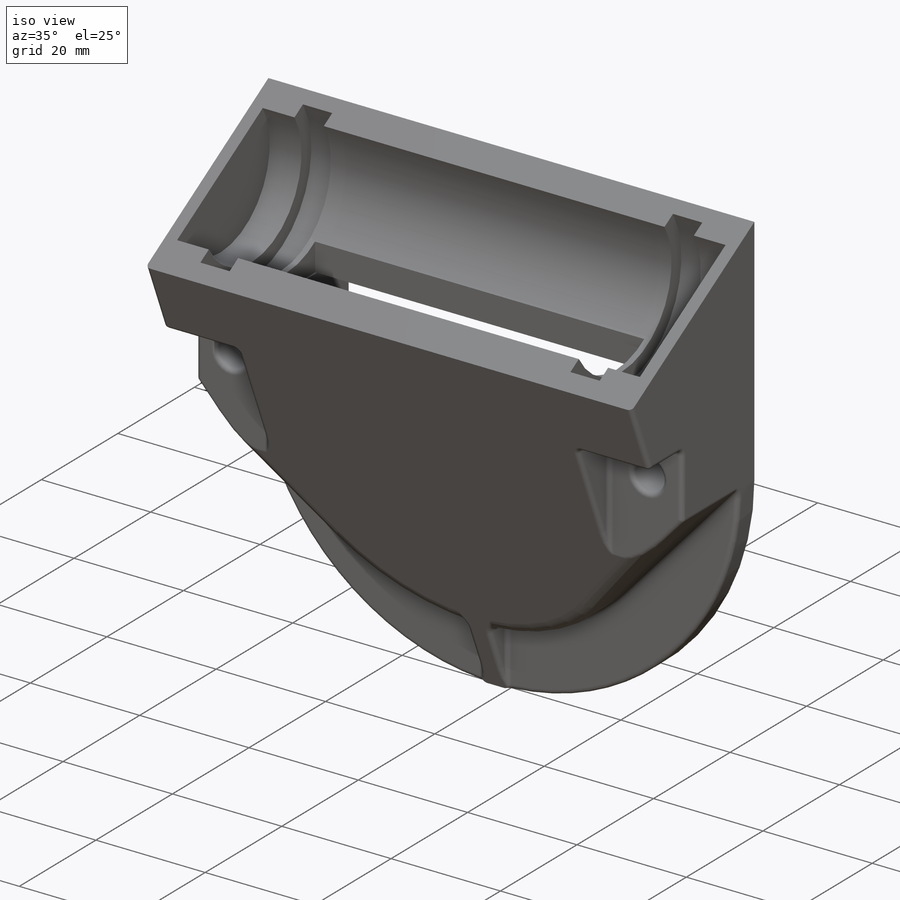
[diagram: iso view]
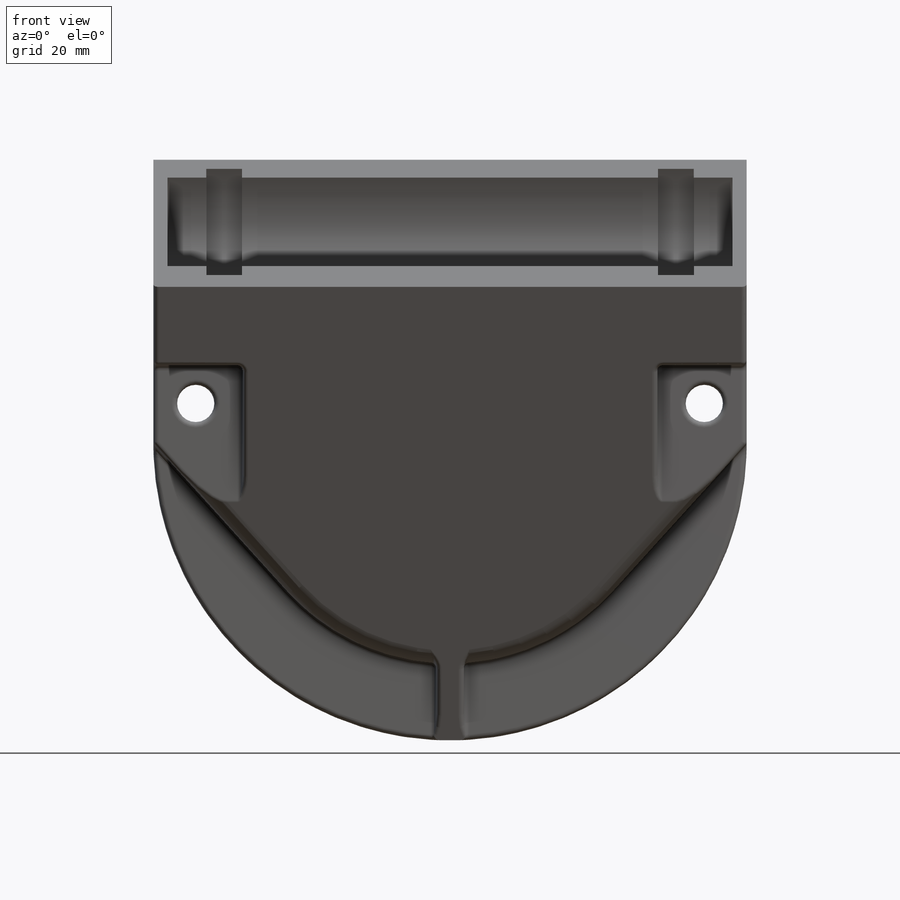
[diagram: front view]
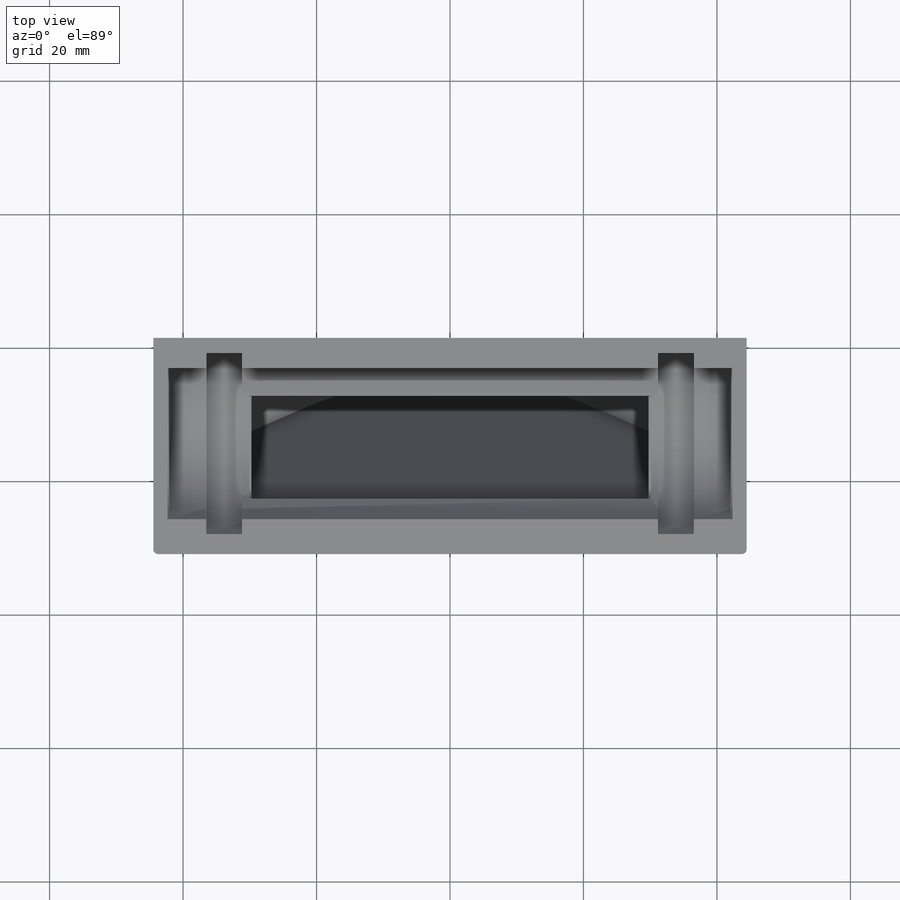
[diagram: top view]
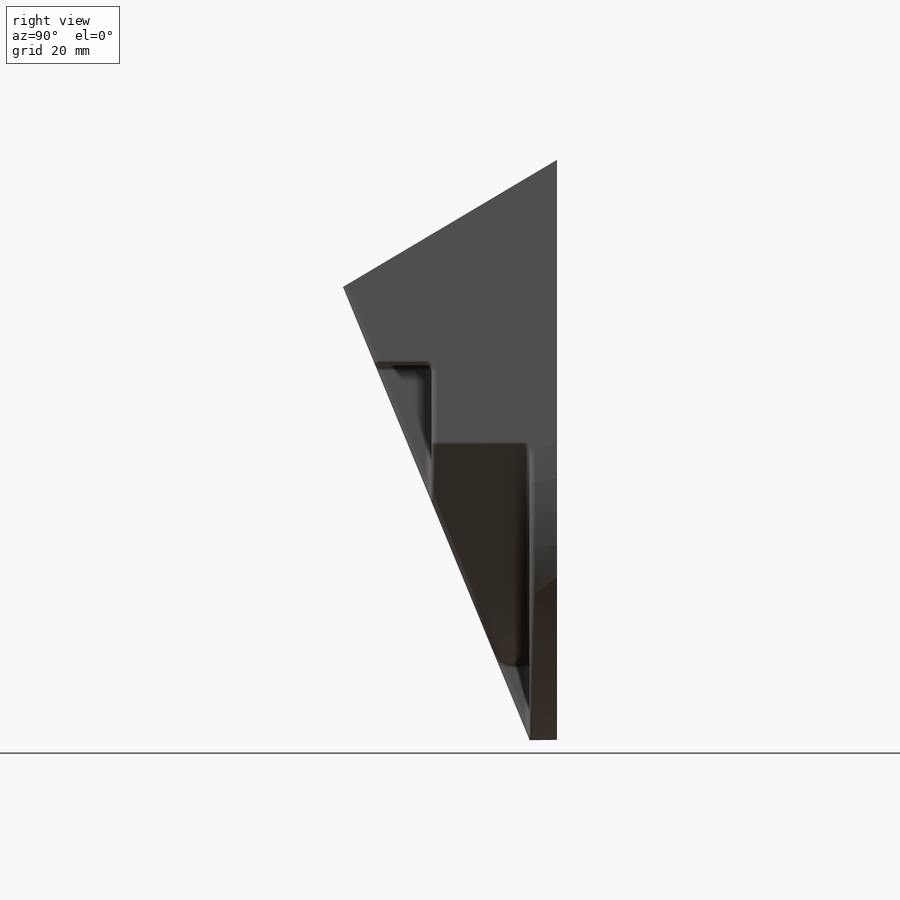
[diagram: right view]
SOLIDWORKS PART (.sldprt)
format: sldprt  version: not decoded by parser v0  size: 679,424 bytes
history: native  units: mm
features: sketch x13, cut_extrude x7, fillet x6, extrude x3, plane x2, material x1, cut_revolve x1 (+16 scaffold rows collapsed)
feature tree (49):
  scaffold x16  (default folders/planes/origin — collapsed)
  material  "Material <not specified>"
  sketch  "Sketch1"  dims[D1=44.45mm D2=42.545mm]
  extrude  "Extrude1"  Depth=4.1148mm
  sketch  "Sketch2"  dims[D1=11.5062mm]
  extrude  "Extrude2"  Depth=32.0802mm
  sketch  "Sketch3"  dims[D1=2.0828mm D2=2.0828mm]
  extrude  "Extrude3"  [1 undecoded]
  sketch  "Sketch9"  dims[D1=19.05mm]
  cut_extrude  "Extrude10"  [1 undecoded]
  sketch  "Sketch4"
  cut_extrude  "Extrude7"  [1 undecoded]
  sketch  "Sketch5"
  cut_extrude  "Extrude8"  [1 undecoded]
  sketch  "Sketch10"  dims[D1=12.7mm]
  plane  "Plane2"  Offset=18.8468mm
  sketch  "Sketch11"  dims[D1=~31.05785mm D2=~31.05785mm]
  cut_extrude  "Extrude12"  [1 undecoded]
  sketch  "Sketch12"  dims[c1.D1=13.0175mm c1.D2=13.0175mm c1.D6=13.0175mm c1.D8=15.5829mm c2.D2=31.1658mm c2.D3=31.1658mm c2.D4=36.5252mm c2.D5=36.5252mm c2.D6=42.3291mm c2.D7=42.3291mm]
  cut_revolve  "Cut-Revolve2"  Angle=360deg
  sketch  "Sketch13"  dims[c1.D3=30.1117mm c1.D4=88.9mm c2.D4=90.0deg c3.D4=30.1117mm c3.D1=8.9916mm c3.D2=8.9916mm c3.D3=30.1117mm c4.D4=30.1117mm]
  plane  "Plane3"
  sketch  "Sketch14"
  cut_extrude  "Extrude14"  Depth=25.1206mm
  sketch  "Sketch15"  dims[D1=5.08mm D2=14.6812mm]
  cut_extrude  "Extrude15"  Depth=5.334mm
  sketch  "Sketch17"  dims[D4=5.5753mm D5=5.5753mm D1=38.1mm D2=38.1mm D3=5.715mm]
  cut_extrude  "Extrude16"  [1 undecoded]
  fillet  "Fillet6"  Radius=3.175mm
  fillet  "Fillet7"  Radius=0.79375mm
  fillet  "Fillet8"  Radius=0.79375mm
  fillet  "Fillet9"  Radius=0.79375mm
  fillet  "Fillet10"  Radius=0.79375mm
  fillet  "Fillet11"  Radius=0.79375mm
decode coverage: 21 of 30 modeling features carry decoded parameters
note: ~ marks probable driven/reference dimensions
note: 6 parameter values undecoded
summary: no parameter record found for 6 features
note: suppression state not decoded; provenance and decode notes live in map.json
